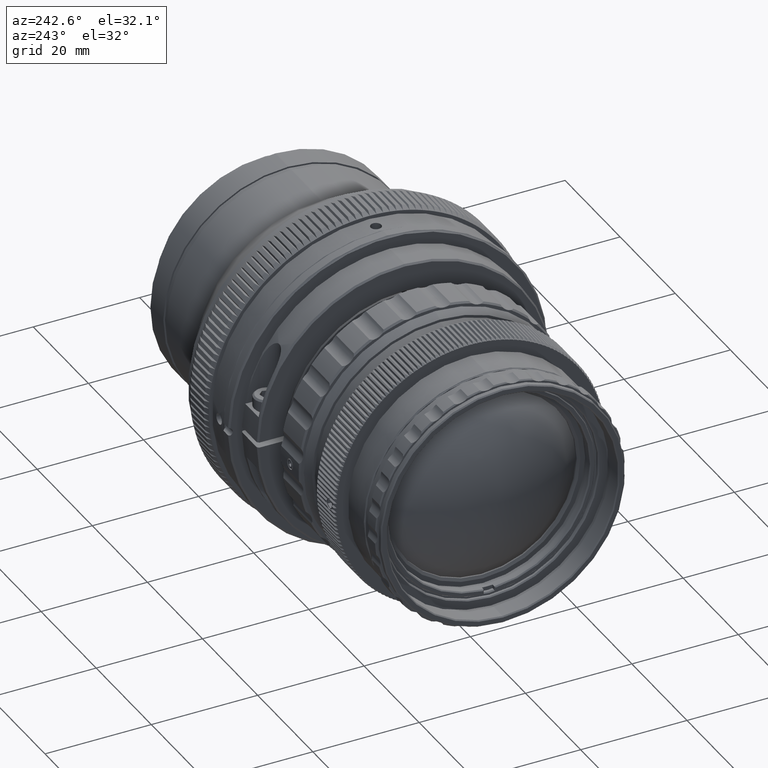
[diagram: clean part render]
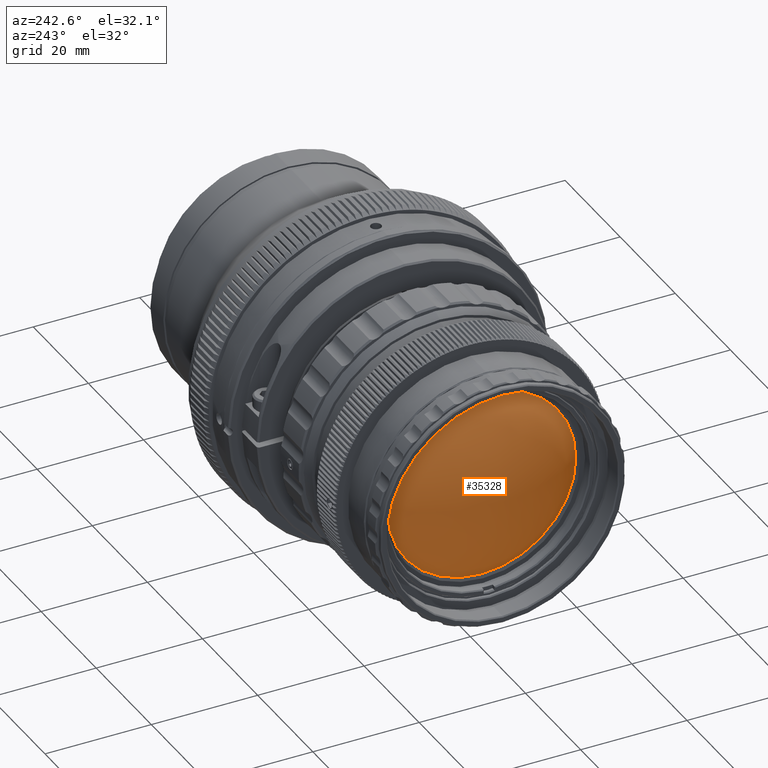
[diagram: same view with one face highlighted and labeled with its STEP entity id]
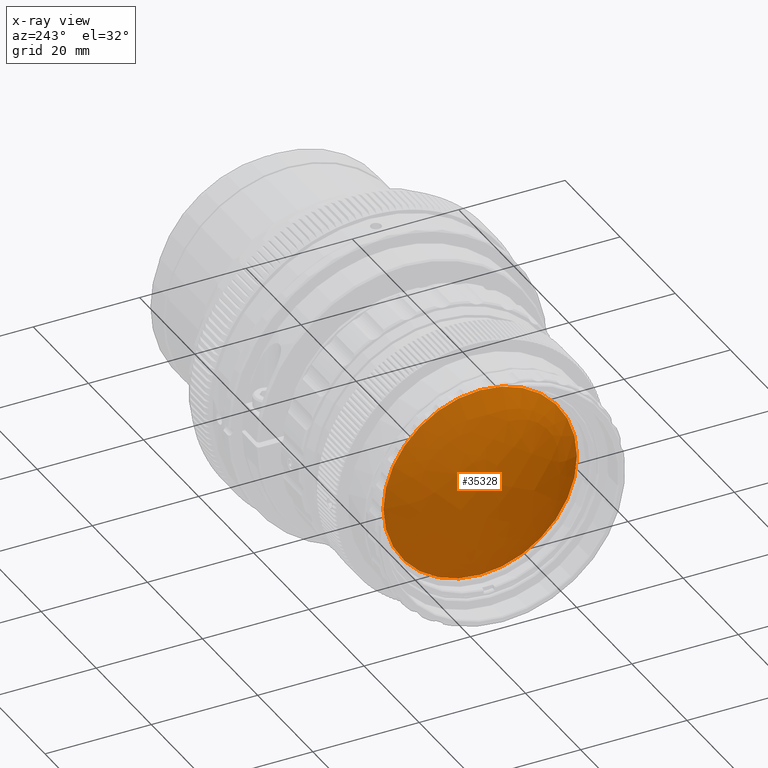
[diagram: x-ray of the same camera — body ghosted, the highlighted face saturated]
A machine part, auxiliary view. The second image highlights one B-rep face of the part: STEP entity #35328.
The next image is the same camera in x-ray: the body ghosted, the highlighted face saturated — about 0% of this face is hidden behind the body in this view.
In plain terms, the highlighted face is a freeform B-spline surface patch.
Its self-contained STEP definition (entity closure, byte-faithful):
#1164 = CARTESIAN_POINT ( 'NONE',  ( -6.448146627481495600, -7.649272369388555100, -8.464871199184390300 ) ) ;
#1469 = CARTESIAN_POINT ( 'NONE',  ( -6.473506925500887900, -7.649272369388555100, 8.365500120793631900 ) ) ;
#6180 = CARTESIAN_POINT ( 'NONE',  ( 5.280870867762492300, 18.43745946649136500, -5.452699823221345300 ) ) ;
#8338 = CARTESIAN_POINT ( 'NONE',  ( 5.347809802795217700, -18.51430796215071700, 5.367570490298231100 ) ) ;
#9928 = CARTESIAN_POINT ( 'NONE',  ( 7.233498735703769900, 0.0000000000000000000, 0.0000000000000000000 ) ) ;
#13429 = CARTESIAN_POINT ( 'NONE',  ( 5.264534872887521600, 18.43745946649136500, 5.388689320423990700 ) ) ;
#15928 = CARTESIAN_POINT ( 'NONE',  ( 5.190669288737570500, -7.649272369388554300, 20.49847317591281000 ) ) ;
#20799 = AXIS2_PLACEMENT_3D ( 'NONE', #34193, #27632, #63592 ) ;
#22505 = CARTESIAN_POINT ( 'NONE',  ( 12.83191561083449300, -18.51430796215071700, 13.15247123620401700 ) ) ;
#27632 = DIRECTION ( 'NONE',  ( -1.000000000000000000, -0.0000000000000000000, -0.0000000000000000000 ) ) ;
#34193 = CARTESIAN_POINT ( 'NONE',  ( 7.233498735703769900, 0.0000000000000000000, 0.0000000000000000000 ) ) ;
#35049 = CARTESIAN_POINT ( 'NONE',  ( 5.230493506977332200, 7.529675140124559200, -20.58396140065830300 ) ) ;
#35328 = ADVANCED_FACE ( 'NONE', ( #63843 ), #51605, .T. ) ;
#37246 = CARTESIAN_POINT ( 'NONE',  ( 5.364081775218684500, -18.51430796215071700, -5.431330129322509100 ) ) ;
#40322 = CIRCLE ( 'NONE', #20799, 18.19999999999999900 ) ;
#43860 = CARTESIAN_POINT ( 'NONE',  ( 5.252540889086181300, -7.649272369388554300, -20.56263766877255300 ) ) ;
#49191 = CARTESIAN_POINT ( 'NONE',  ( 12.81794204721576900, 18.43745946649136500, -13.24555189833057700 ) ) ;
#51258 = CARTESIAN_POINT ( 'NONE',  ( 7.233498735703769900, 2.228857174448182900E-015, -18.19999999999999900 ) ) ;
#51605 =( BOUNDED_SURFACE ( )  B_SPLINE_SURFACE ( 3, 3, ( 
 ( #49191, #6180, #13429, #77948 ),
 ( #35049, #85124, #56662, #72563 ),
 ( #43860, #1164, #1469, #15928 ),
 ( #72243, #37246, #8338, #22505 ) ),
 .UNSPECIFIED., .F., .F., .F. ) 
 B_SPLINE_SURFACE_WITH_KNOTS ( ( 4, 4 ),
 ( 4, 4 ),
 ( 0.0000000000000000000, 1.000000000000000000 ),
 ( 0.0000000000000000000, 1.000000000000000000 ),
 .UNSPECIFIED. ) 
 GEOMETRIC_REPRESENTATION_ITEM ( )  RATIONAL_B_SPLINE_SURFACE ( (
 ( 1.000000000000000000, 0.8132344015477329700, 0.8132344015477329700, 1.000000000000000000),
 ( 0.8114696886478958100, 0.6599150666216967400, 0.6599150666216967400, 0.8114696886478958100),
 ( 0.8114696886478958100, 0.6599150666216967400, 0.6599150666216967400, 0.8114696886478958100),
 ( 1.000000000000000000, 0.8132344015477329700, 0.8132344015477329700, 1.000000000000000000) ) ) 
 REPRESENTATION_ITEM ( '' )  SURFACE ( )  );
#53792 = AXIS2_PLACEMENT_3D ( 'NONE', #9928, #74725, #82198 ) ;
#56662 = CARTESIAN_POINT ( 'NONE',  ( -6.507714376940608500, 7.529675140124559200, 8.374175256957560300 ) ) ;
#56673 = CARTESIAN_POINT ( 'NONE',  ( 7.233498735703769900, 0.0000000000000000000, 18.19999999999999900 ) ) ;
#57614 = VERTEX_POINT ( 'NONE', #51258 ) ;
#58954 = ORIENTED_EDGE ( 'NONE', *, *, #86705, .T. ) ;
#59279 = ORIENTED_EDGE ( 'NONE', *, *, #79982, .T. ) ;
#63592 = DIRECTION ( 'NONE',  ( 0.0000000000000000000, 0.0000000000000000000, 1.000000000000000000 ) ) ;
#63843 = FACE_OUTER_BOUND ( 'NONE', #72770, .T. ) ;
#67011 = VERTEX_POINT ( 'NONE', #56673 ) ;
#72243 = CARTESIAN_POINT ( 'NONE',  ( 12.87161439410188800, -18.51430796215071700, -13.19364121210812400 ) ) ;
#72563 = CARTESIAN_POINT ( 'NONE',  ( 5.168557744946816100, 7.529675140124559200, 20.51973036835629600 ) ) ;
#72770 = EDGE_LOOP ( 'NONE', ( #59279, #58954 ) ) ;
#74725 = DIRECTION ( 'NONE',  ( -1.000000000000000000, -0.0000000000000000000, -0.0000000000000000000 ) ) ;
#77948 = CARTESIAN_POINT ( 'NONE',  ( 12.77808706816826700, 18.43745946649136500, 13.20421993820493400 ) ) ;
#78716 = CIRCLE ( 'NONE', #53792, 18.19999999999999900 ) ;
#79982 = EDGE_CURVE ( 'NONE', #67011, #57614, #40322, .T. ) ;
#82198 = DIRECTION ( 'NONE',  ( 0.0000000000000000000, 0.0000000000000000000, 1.000000000000000000 ) ) ;
#85124 = CARTESIAN_POINT ( 'NONE',  ( -6.482327779951007500, 7.529675140124559200, -8.473649384493418400 ) ) ;
#86705 = EDGE_CURVE ( 'NONE', #57614, #67011, #78716, .T. ) ;